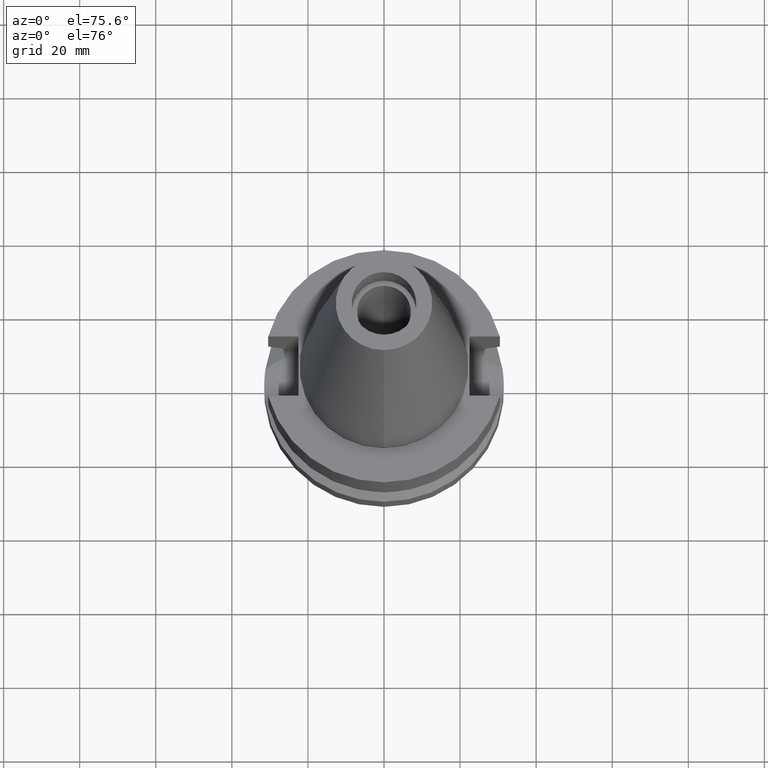
[diagram: clean part render]
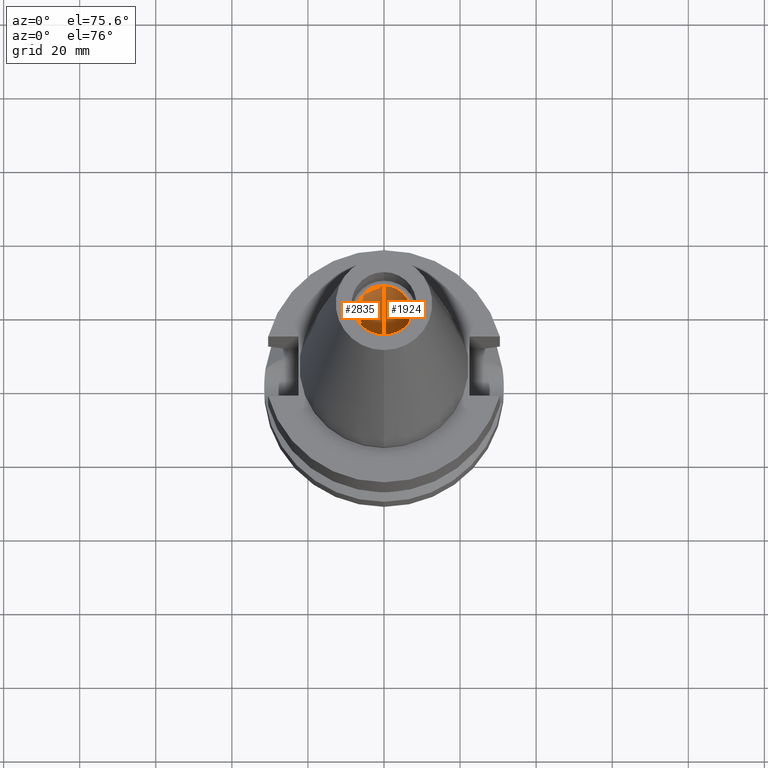
[diagram: same view with one multi-face feature highlighted, each face labeled with its STEP entity id]
A machine part, auxiliary view. The highlighted faces form ONE feature: a constant-radius fillet chain: 2 tangent blend faces with common blend radius 7.1 mm. The faces share edges in the B-rep.
Their STEP definitions:
[1] entity #2835 (Cylinder):
#285 = EDGE_CURVE ( 'NONE', #1427, #336, #2458, .T. ) ;
#336 = VERTEX_POINT ( 'NONE', #524 ) ;
#374 = VECTOR ( 'NONE', #1214, 1000.000000000000000 ) ;
#483 = ORIENTED_EDGE ( 'NONE', *, *, #1542, .T. ) ;
#524 = CARTESIAN_POINT ( 'NONE',  ( 0.0000000000000000000, 7.100000000000000533, 56.39999999999999858 ) ) ;
#609 = DIRECTION ( 'NONE',  ( 0.0000000000000000000, -1.000000000000000000, 0.0000000000000000000 ) ) ;
#691 = EDGE_CURVE ( 'NONE', #336, #1276, #1862, .T. ) ;
#849 = DIRECTION ( 'NONE',  ( 0.0000000000000000000, 1.000000000000000000, 0.0000000000000000000 ) ) ;
#1080 = ORIENTED_EDGE ( 'NONE', *, *, #285, .T. ) ;
#1102 = CARTESIAN_POINT ( 'NONE',  ( 0.0000000000000000000, 0.0000000000000000000, 56.39999999999999858 ) ) ;
#1117 = LINE ( 'NONE', #2265, #1708 ) ;
#1214 = DIRECTION ( 'NONE',  ( 0.0000000000000000000, 0.0000000000000000000, 1.000000000000000000 ) ) ;
#1276 = VERTEX_POINT ( 'NONE', #2861 ) ;
#1343 = AXIS2_PLACEMENT_3D ( 'NONE', #1102, #2069, #849 ) ;
#1347 = VERTEX_POINT ( 'NONE', #2950 ) ;
#1355 = ORIENTED_EDGE ( 'NONE', *, *, #2606, .F. ) ;
#1427 = VERTEX_POINT ( 'NONE', #1778 ) ;
#1542 = EDGE_CURVE ( 'NONE', #1347, #1427, #2247, .T. ) ;
#1618 = CARTESIAN_POINT ( 'NONE',  ( 0.0000000000000000000, 0.0000000000000000000, 0.0000000000000000000 ) ) ;
#1635 = ORIENTED_EDGE ( 'NONE', *, *, #691, .T. ) ;
#1708 = VECTOR ( 'NONE', #2279, 1000.000000000000000 ) ;
#1778 = CARTESIAN_POINT ( 'NONE',  ( 0.0000000000000000000, 7.100000000000000533, 0.0000000000000000000 ) ) ;
#1862 = CIRCLE ( 'NONE', #1343, 7.100000000000000533 ) ;
#1883 = CYLINDRICAL_SURFACE ( 'NONE', #2013, 7.100000000000000533 ) ;
#1898 = FACE_OUTER_BOUND ( 'NONE', #2174, .T. ) ;
#2013 = AXIS2_PLACEMENT_3D ( 'NONE', #3063, #2821, #2333 ) ;
#2069 = DIRECTION ( 'NONE',  ( 0.0000000000000000000, 0.0000000000000000000, 1.000000000000000000 ) ) ;
#2076 = DIRECTION ( 'NONE',  ( 0.0000000000000000000, 0.0000000000000000000, -1.000000000000000000 ) ) ;
#2174 = EDGE_LOOP ( 'NONE', ( #1635, #1355, #483, #1080 ) ) ;
#2247 = CIRCLE ( 'NONE', #2348, 7.100000000000000533 ) ;
#2265 = CARTESIAN_POINT ( 'NONE',  ( 0.0000000000000000000, -7.100000000000000533, 0.0000000000000000000 ) ) ;
#2279 = DIRECTION ( 'NONE',  ( 0.0000000000000000000, 0.0000000000000000000, 1.000000000000000000 ) ) ;
#2333 = DIRECTION ( 'NONE',  ( 0.0000000000000000000, -1.000000000000000000, 0.0000000000000000000 ) ) ;
#2348 = AXIS2_PLACEMENT_3D ( 'NONE', #1618, #2076, #609 ) ;
#2458 = LINE ( 'NONE', #3114, #374 ) ;
#2606 = EDGE_CURVE ( 'NONE', #1347, #1276, #1117, .T. ) ;
#2821 = DIRECTION ( 'NONE',  ( 0.0000000000000000000, 0.0000000000000000000, -1.000000000000000000 ) ) ;
#2835 = ADVANCED_FACE ( 'NONE', ( #1898 ), #1883, .F. ) ;
#2861 = CARTESIAN_POINT ( 'NONE',  ( 0.0000000000000000000, -7.100000000000000533, 56.39999999999999858 ) ) ;
#2950 = CARTESIAN_POINT ( 'NONE',  ( 0.0000000000000000000, -7.100000000000000533, 0.0000000000000000000 ) ) ;
#3063 = CARTESIAN_POINT ( 'NONE',  ( 0.0000000000000000000, 0.0000000000000000000, 0.0000000000000000000 ) ) ;
#3114 = CARTESIAN_POINT ( 'NONE',  ( 0.0000000000000000000, 7.100000000000000533, 0.0000000000000000000 ) ) ;
[2] entity #1924 (Cylinder):
#55 = CARTESIAN_POINT ( 'NONE',  ( 0.0000000000000000000, 0.0000000000000000000, 56.39999999999999858 ) ) ;
#140 = CYLINDRICAL_SURFACE ( 'NONE', #2852, 7.100000000000000533 ) ;
#152 = DIRECTION ( 'NONE',  ( 0.0000000000000000000, 0.0000000000000000000, -1.000000000000000000 ) ) ;
#285 = EDGE_CURVE ( 'NONE', #1427, #336, #2458, .T. ) ;
#336 = VERTEX_POINT ( 'NONE', #524 ) ;
#374 = VECTOR ( 'NONE', #1214, 1000.000000000000000 ) ;
#524 = CARTESIAN_POINT ( 'NONE',  ( 0.0000000000000000000, 7.100000000000000533, 56.39999999999999858 ) ) ;
#597 = DIRECTION ( 'NONE',  ( 0.0000000000000000000, -1.000000000000000000, 0.0000000000000000000 ) ) ;
#915 = DIRECTION ( 'NONE',  ( 0.0000000000000000000, 0.0000000000000000000, -1.000000000000000000 ) ) ;
#1117 = LINE ( 'NONE', #2265, #1708 ) ;
#1191 = ORIENTED_EDGE ( 'NONE', *, *, #2147, .T. ) ;
#1214 = DIRECTION ( 'NONE',  ( 0.0000000000000000000, 0.0000000000000000000, 1.000000000000000000 ) ) ;
#1276 = VERTEX_POINT ( 'NONE', #2861 ) ;
#1347 = VERTEX_POINT ( 'NONE', #2950 ) ;
#1361 = ORIENTED_EDGE ( 'NONE', *, *, #285, .F. ) ;
#1377 = EDGE_CURVE ( 'NONE', #1276, #336, #1388, .T. ) ;
#1388 = CIRCLE ( 'NONE', #1441, 7.100000000000000533 ) ;
#1427 = VERTEX_POINT ( 'NONE', #1778 ) ;
#1441 = AXIS2_PLACEMENT_3D ( 'NONE', #55, #2487, #1523 ) ;
#1523 = DIRECTION ( 'NONE',  ( 0.0000000000000000000, -1.000000000000000000, 0.0000000000000000000 ) ) ;
#1708 = VECTOR ( 'NONE', #2279, 1000.000000000000000 ) ;
#1778 = CARTESIAN_POINT ( 'NONE',  ( 0.0000000000000000000, 7.100000000000000533, 0.0000000000000000000 ) ) ;
#1892 = DIRECTION ( 'NONE',  ( 0.0000000000000000000, 1.000000000000000000, 0.0000000000000000000 ) ) ;
#1924 = ADVANCED_FACE ( 'NONE', ( #2130 ), #140, .F. ) ;
#2127 = CARTESIAN_POINT ( 'NONE',  ( 0.0000000000000000000, 0.0000000000000000000, 0.0000000000000000000 ) ) ;
#2130 = FACE_OUTER_BOUND ( 'NONE', #2908, .T. ) ;
#2147 = EDGE_CURVE ( 'NONE', #1427, #1347, #2804, .T. ) ;
#2265 = CARTESIAN_POINT ( 'NONE',  ( 0.0000000000000000000, -7.100000000000000533, 0.0000000000000000000 ) ) ;
#2279 = DIRECTION ( 'NONE',  ( 0.0000000000000000000, 0.0000000000000000000, 1.000000000000000000 ) ) ;
#2286 = ORIENTED_EDGE ( 'NONE', *, *, #2606, .T. ) ;
#2458 = LINE ( 'NONE', #3114, #374 ) ;
#2487 = DIRECTION ( 'NONE',  ( 0.0000000000000000000, 0.0000000000000000000, 1.000000000000000000 ) ) ;
#2550 = AXIS2_PLACEMENT_3D ( 'NONE', #2127, #152, #1892 ) ;
#2606 = EDGE_CURVE ( 'NONE', #1347, #1276, #1117, .T. ) ;
#2804 = CIRCLE ( 'NONE', #2550, 7.100000000000000533 ) ;
#2852 = AXIS2_PLACEMENT_3D ( 'NONE', #3074, #915, #597 ) ;
#2861 = CARTESIAN_POINT ( 'NONE',  ( 0.0000000000000000000, -7.100000000000000533, 56.39999999999999858 ) ) ;
#2908 = EDGE_LOOP ( 'NONE', ( #1191, #2286, #3025, #1361 ) ) ;
#2950 = CARTESIAN_POINT ( 'NONE',  ( 0.0000000000000000000, -7.100000000000000533, 0.0000000000000000000 ) ) ;
#3025 = ORIENTED_EDGE ( 'NONE', *, *, #1377, .T. ) ;
#3074 = CARTESIAN_POINT ( 'NONE',  ( 0.0000000000000000000, 0.0000000000000000000, 0.0000000000000000000 ) ) ;
#3114 = CARTESIAN_POINT ( 'NONE',  ( 0.0000000000000000000, 7.100000000000000533, 0.0000000000000000000 ) ) ;